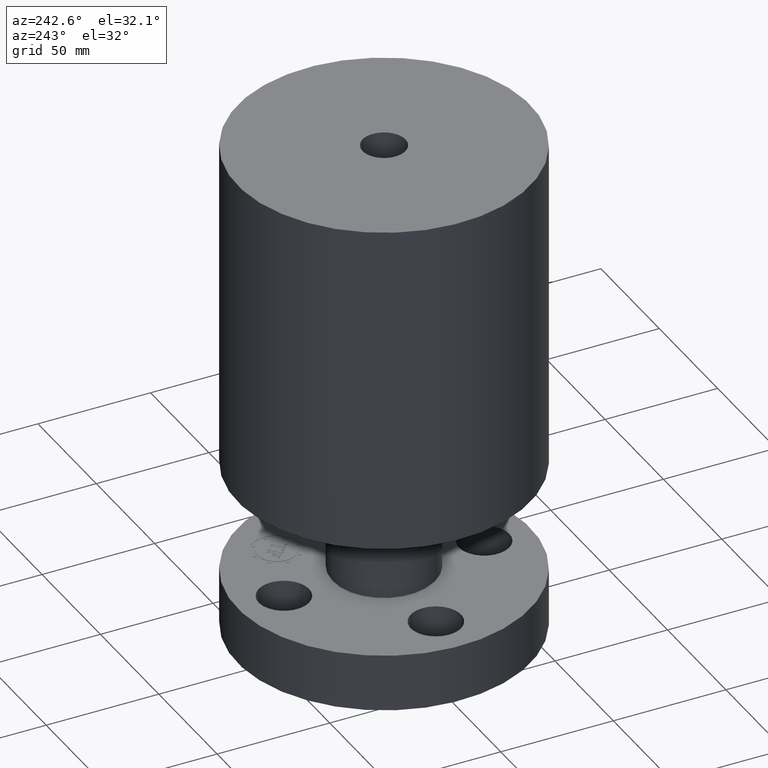
[diagram: clean part render]
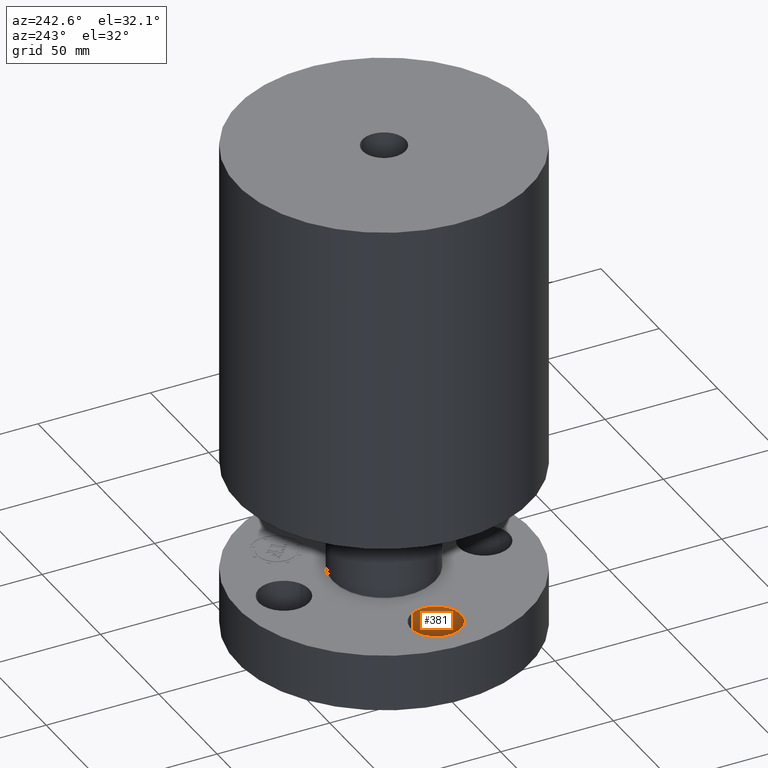
[diagram: same view with one face highlighted and labeled with its STEP entity id]
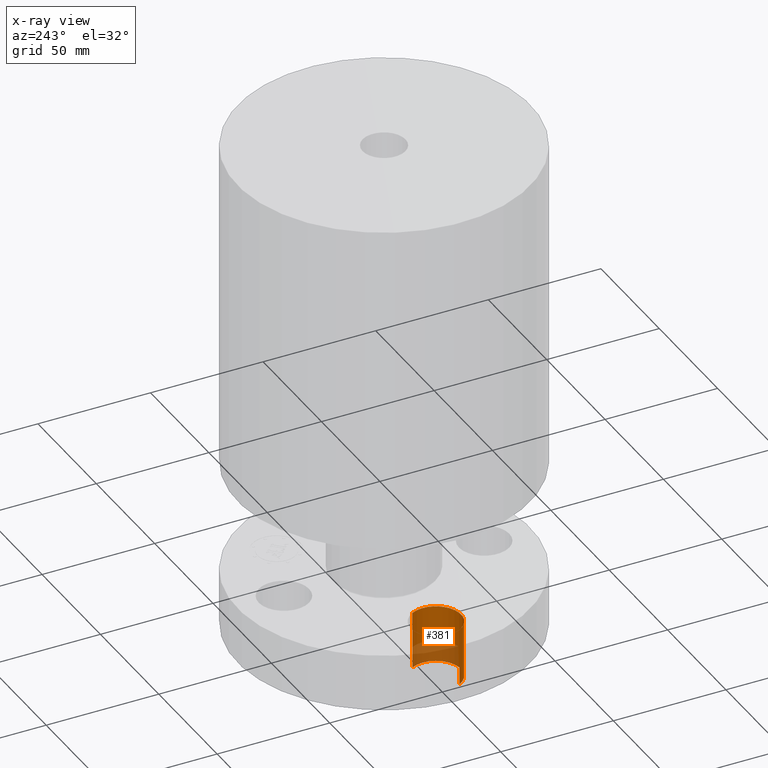
[diagram: x-ray of the same camera — body ghosted, the highlighted face saturated]
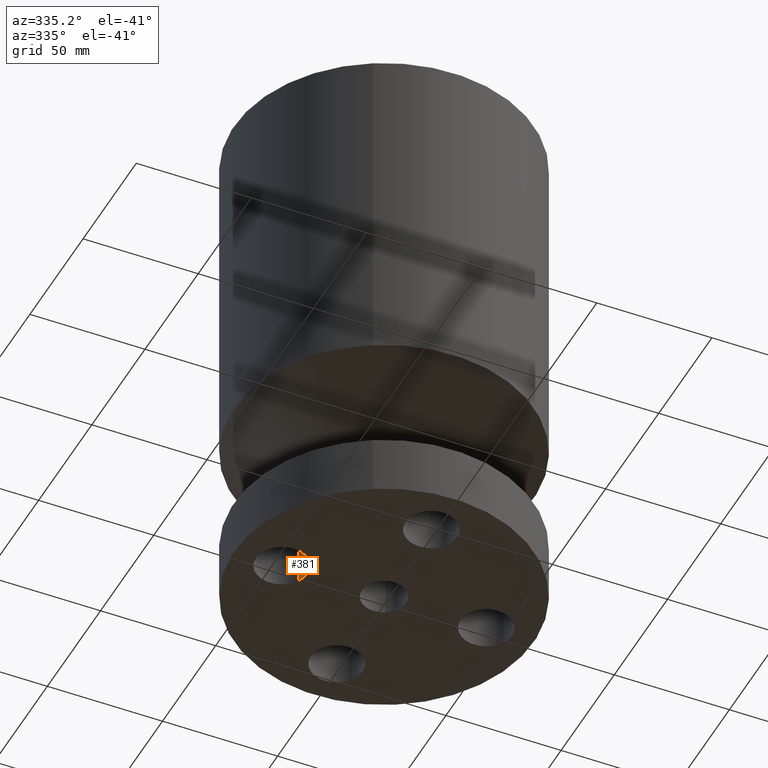
[diagram: same view with one face highlighted and labeled with its STEP entity id]
A machine part, auxiliary view. The second image highlights one B-rep face of the part: STEP entity #381.
The next image is the same camera in x-ray: the body ghosted, the highlighted face saturated — about 33% of this face is hidden behind the body in this view.
A second angle (auxiliary view) of the same face is appended — the face is thin or edge-on in the first view.
In plain terms, the highlighted cylindrical surface (edge-blend (fillet) strip) has radius 11.176 mm, axis along (0, 0, 1).
Its self-contained STEP definition (entity closure, byte-faithful):
#145=AXIS2_PLACEMENT_3D('Circle Axis2P3D',#143,#144,$) ;
#342=AXIS2_PLACEMENT_3D('Cylinder Axis2P3D',#339,#340,#341) ;
#372=AXIS2_PLACEMENT_3D('Circle Axis2P3D',#370,#371,$) ;
#143=CARTESIAN_POINT('Axis2P3D Location',(-1.75000000001,-5.59482469102E-016,1.)) ;
#147=CARTESIAN_POINT('Vertex',(-1.36386367277,0.210947236987,1.)) ;
#149=CARTESIAN_POINT('Vertex',(-2.13613632724,-0.210947236987,1.)) ;
#339=CARTESIAN_POINT('Axis2P3D Location',(-1.75000000001,-2.14313189852E-016,0.00393700787402)) ;
#344=CARTESIAN_POINT('Line Origine',(-2.13613632724,-0.210947236987,0.500000000002)) ;
#348=CARTESIAN_POINT('Vertex',(-2.13613632724,-0.210947236987,2.2401153548E-016)) ;
#355=CARTESIAN_POINT('Vertex',(-1.36386367277,0.210947236987,2.2401153548E-016)) ;
#358=CARTESIAN_POINT('Line Origine',(-1.36386367277,0.210947236987,0.500000000002)) ;
#370=CARTESIAN_POINT('Axis2P3D Location',(-1.75000000001,-2.14313189852E-016,0.)) ;
#144=DIRECTION('Axis2P3D Direction',(0.,0.,-0.0393700787402)) ;
#340=DIRECTION('Axis2P3D Direction',(0.,0.,0.0393700787402)) ;
#341=DIRECTION('Axis2P3D XDirection',(-0.0345504945626,-0.0188750212049,0.)) ;
#345=DIRECTION('Vector Direction',(0.,0.,0.0393700787402)) ;
#359=DIRECTION('Vector Direction',(0.,0.,0.0393700787402)) ;
#371=DIRECTION('Axis2P3D Direction',(0.,0.,0.0393700787402)) ;
#346=VECTOR('Line Direction',#345,0.0393700787402) ;
#360=VECTOR('Line Direction',#359,0.0393700787402) ;
#376=ORIENTED_EDGE('',*,*,#362,.T.) ;
#377=ORIENTED_EDGE('',*,*,#374,.T.) ;
#378=ORIENTED_EDGE('',*,*,#350,.F.) ;
#379=ORIENTED_EDGE('',*,*,#151,.F.) ;
#381=ADVANCED_FACE('PartBody',(#380),#343,.F.) ;
#146=CIRCLE('generated circle',#145,0.440000000002) ;
#373=CIRCLE('generated circle',#372,0.440000000002) ;
#343=CYLINDRICAL_SURFACE('generated cylinder',#342,0.440000000002) ;
#151=EDGE_CURVE('',#148,#150,#146,.T.) ;
#350=EDGE_CURVE('',#150,#349,#347,.F.) ;
#362=EDGE_CURVE('',#148,#356,#361,.F.) ;
#374=EDGE_CURVE('',#356,#349,#373,.F.) ;
#375=EDGE_LOOP('',(#376,#377,#378,#379)) ;
#380=FACE_OUTER_BOUND('',#375,.T.) ;
#347=LINE('Line',#344,#346) ;
#361=LINE('Line',#358,#360) ;
#148=VERTEX_POINT('',#147) ;
#150=VERTEX_POINT('',#149) ;
#349=VERTEX_POINT('',#348) ;
#356=VERTEX_POINT('',#355) ;